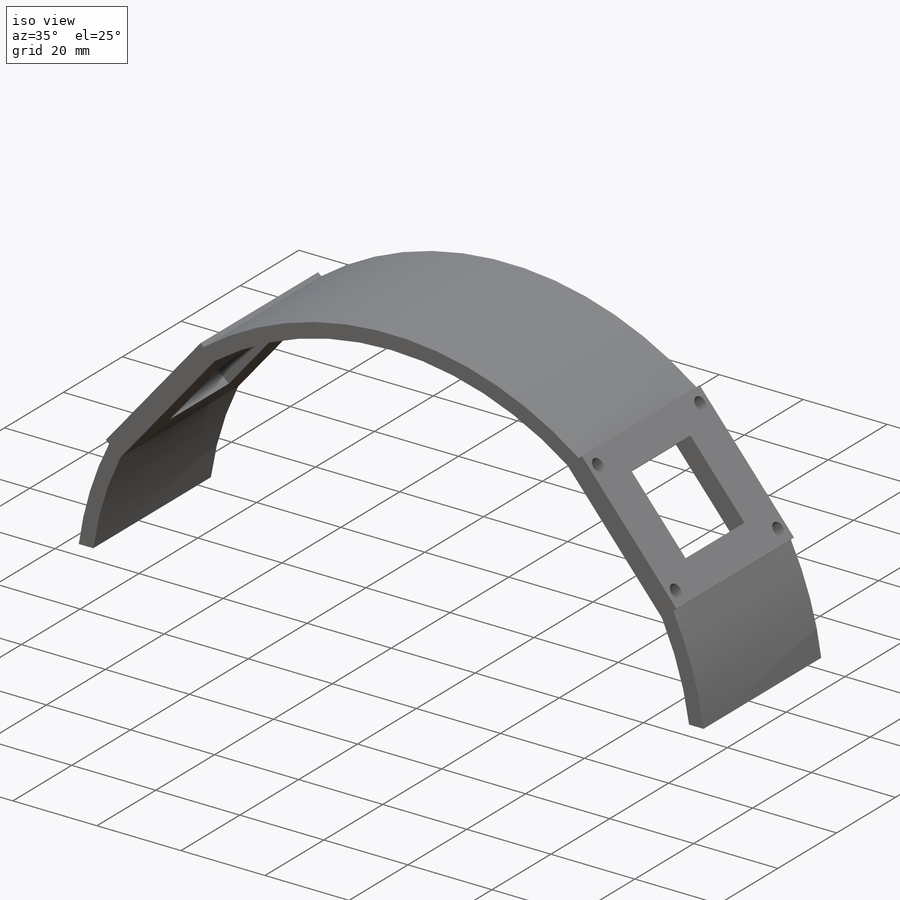
[diagram: iso view]
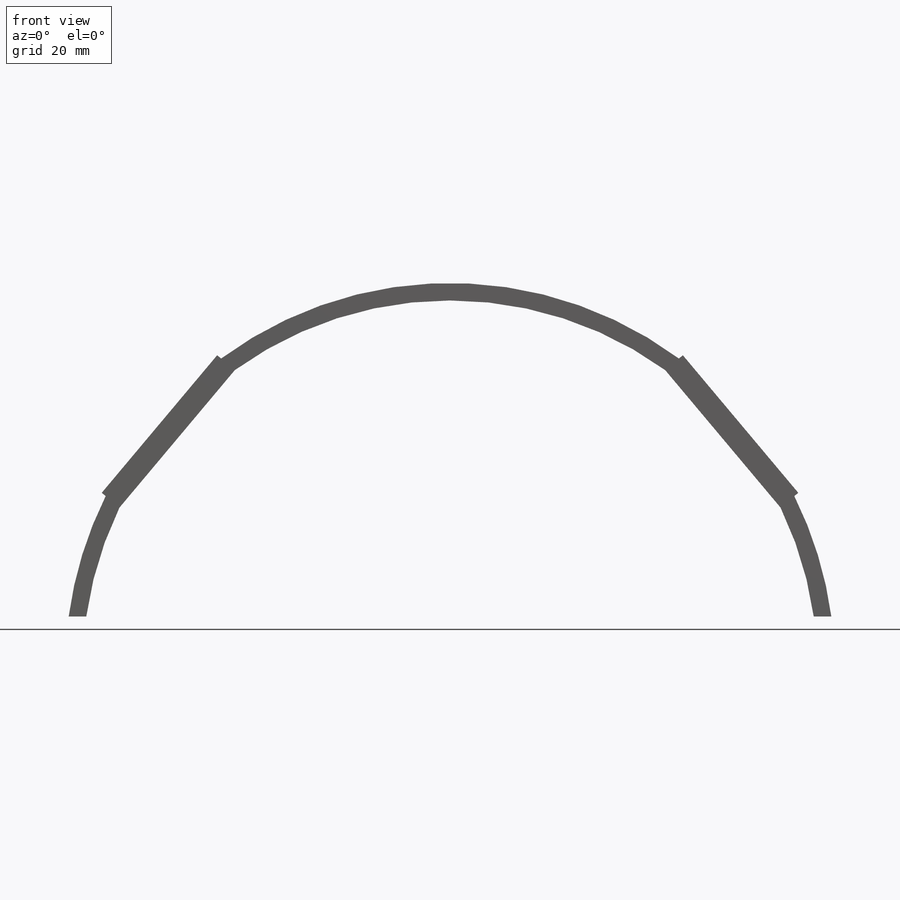
[diagram: front view]
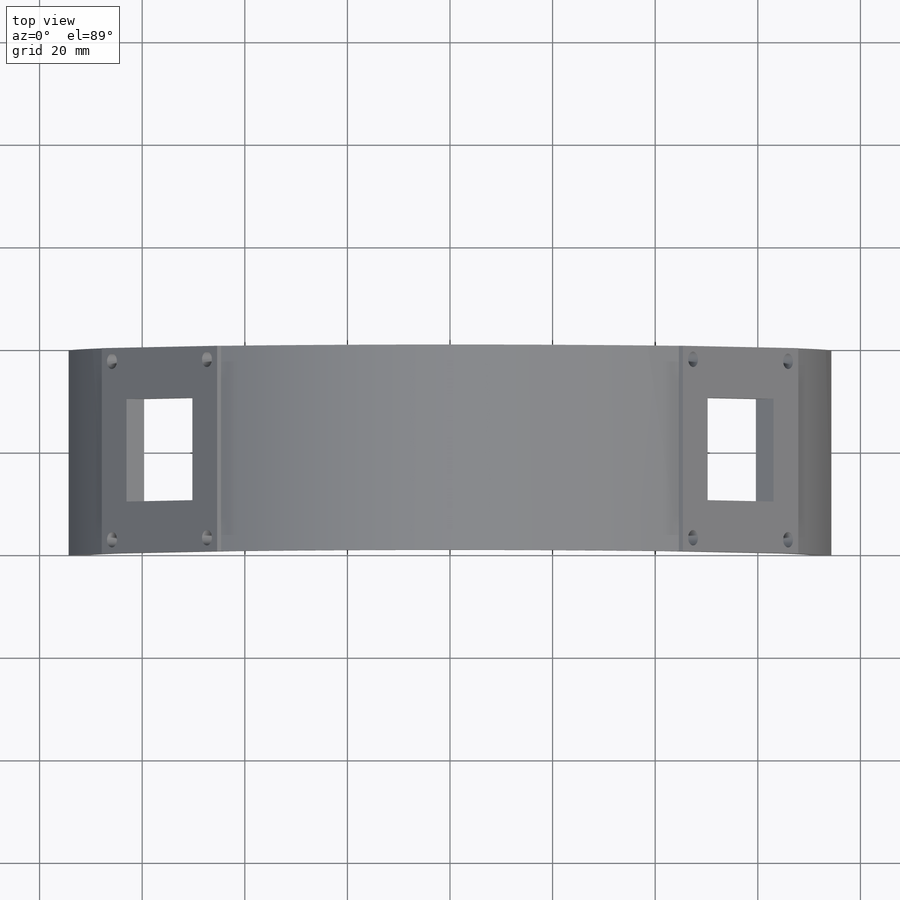
[diagram: top view]
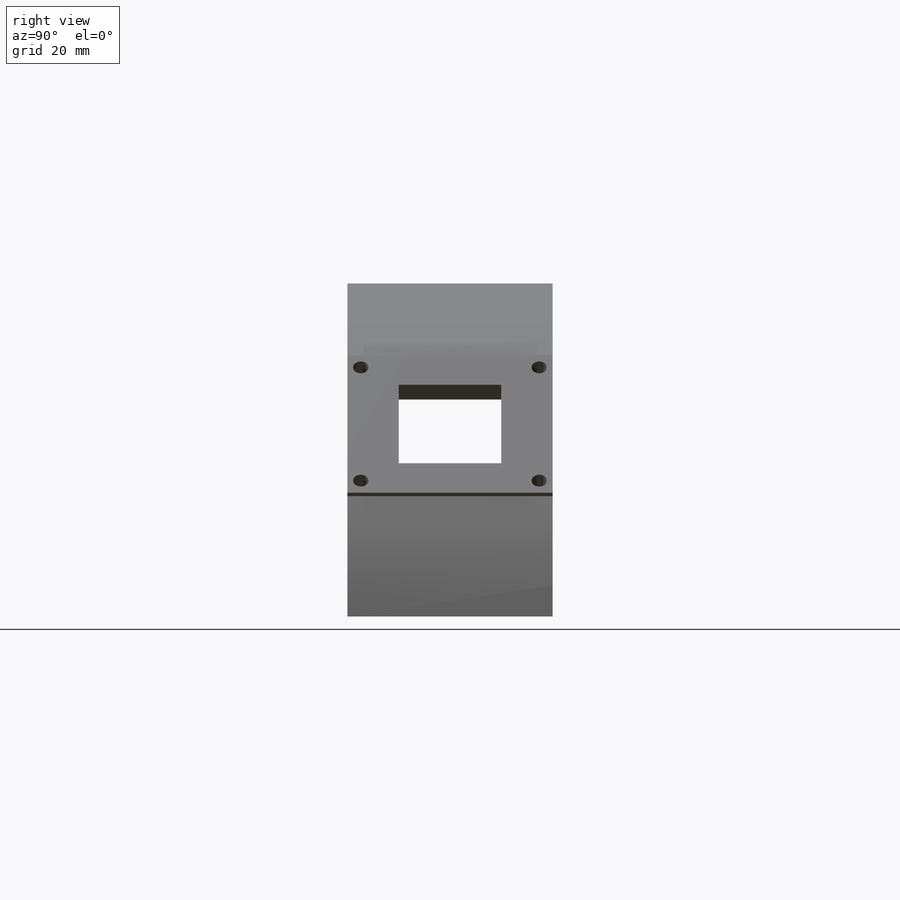
[diagram: right view]
SOLIDWORKS PART (.sldprt)
format: sldprt  version: not decoded by parser v0  size: 540,160 bytes
history: native  units: mm
features: sketch x14, cut_extrude x8, extrude x6, material x1, fillet x1 (+11 scaffold rows collapsed)
feature tree (41):
  scaffold x11  (default folders/planes/origin — collapsed)
  material  "ABS"
  sketch  "Sketch2"  dims[c1.D1=150.0mm c1.D5=~72.086208mm c1.D2=95.0mm c1.D3=120.0mm c2.D3=~59.036243deg c3.D3=50.0mm c3.D4=1.5mm c3.D5=1.5mm c3.D6=1.5mm c3.D7=~1.732051mm c4.D6=1.5mm c4.D7=1.5mm c4.D8=30.0mm c4.D4=3.0mm c5.D6=3.0mm c5.D4=60.0mm c6.D4=10.0deg c6.D6=60.0mm c7.D6=35.0deg c8.D6=~1.436488mm c9.D6=~1.732642deg c10.D6=2.0mm c10.D4=3.0mm c11.D6=60.0mm c12.D6=10.0deg c12.D1=120.0mm c12.D2=~53.657677mm c13.D2=25.0deg c13.D3=40.0mm c14.D2=60.0mm c15.D2=40.0deg c15.D4=3.5mm c15.D3=35.0mm c16.D4=3.0mm c16.D2=~49.792889mm c17.D2=40.0deg c17.D5=0.75mm]
  extrude  "Boss-Extrude1"  Depth=40mm
  sketch  "Sketch8"
  extrude  "Boss-Extrude2"  Depth=1.5mm
  sketch  "Sketch4"  dims[D3=3.0mm D4=6.0mm D1=28.81mm D2=34.78mm D5=20.0mm D6=20.0mm]
  sketch  "Sketch7"  dims[D3=3.0mm D4=5.0mm D1=28.81mm D2=34.78mm D5=20.0mm D6=20.0mm]
  sketch  "Sketch9"
  extrude  "Boss-Extrude3"  Depth=1.5mm
  sketch  "Sketch11"  dims[D3=3.0mm D4=6.0mm D1=28.81mm D2=34.78mm D5=20.0mm D6=20.0mm]
  sketch  "Sketch12"  dims[D3=3.0mm D4=5.0mm D1=28.81mm D2=34.78mm D5=20.0mm D6=20.0mm]
  cut_extrude  "Cut-Extrude1"  Depth=3.75mm
  cut_extrude  "Cut-Extrude2"  Depth=3.75mm
  cut_extrude  "Cut-Extrude3"  [1 undecoded]
  cut_extrude  "Cut-Extrude4"  [1 undecoded]
  sketch  "Sketch14"  dims[c1.D1=150.0mm c1.D5=~72.086208mm c1.D2=95.0mm c1.D3=120.0mm c2.D3=~59.036243deg c3.D3=50.0mm c3.D4=1.5mm c3.D5=1.5mm c3.D6=1.5mm c3.D7=~1.732051mm c4.D6=1.5mm c4.D7=1.5mm c4.D8=30.0mm c4.D4=3.0mm c5.D6=3.0mm c5.D4=60.0mm c6.D4=10.0deg c6.D6=60.0mm c7.D6=35.0deg c8.D6=~1.436488mm c9.D6=~1.732642deg c10.D6=2.0mm c10.D4=3.0mm c11.D6=60.0mm c12.D6=10.0deg c12.D1=120.0mm c12.D2=~53.657677mm c13.D2=25.0deg c13.D3=40.0mm c14.D2=60.0mm c15.D2=40.0deg c15.D4=3.5mm c15.D3=35.0mm c16.D4=3.0mm c16.D2=~49.792889mm c17.D2=40.0deg c17.D5=0.75mm c17.D6=10.0mm]
  extrude  "Boss-Extrude5"  [1 undecoded]
  sketch  "Sketch15"  dims[D2=3.0mm D1=30.0mm D3=2.5mm]
  sketch  "Sketch17"  dims[D2=3.0mm D1=30.0mm D3=2.5mm]
  extrude  "Boss-Extrude6"  Depth=2mm
  cut_extrude  "Cut-Extrude5"  [1 undecoded]
  sketch  "Sketch15<2>"
  cut_extrude  "Cut-Extrude6"  [1 undecoded]
  sketch  "Sketch15<3>"  dims[D1=0.75mm]
  extrude  "Boss-Extrude7"  Depth=2mm
  cut_extrude  "Cut-Extrude7"  [1 undecoded]
  sketch  "Sketch17<2>"  dims[D1=0.75mm]
  cut_extrude  "Cut-Extrude9"  [1 undecoded]
  sketch  "Sketch17<4>"
  fillet  "Fillet1"  Radius=1.5mm
decode coverage: 18 of 29 modeling features carry decoded parameters
note: ~ marks probable driven/reference dimensions
note: 7 parameter values undecoded
summary: no parameter record found for 7 features
note: suppression state not decoded; provenance and decode notes live in map.json
